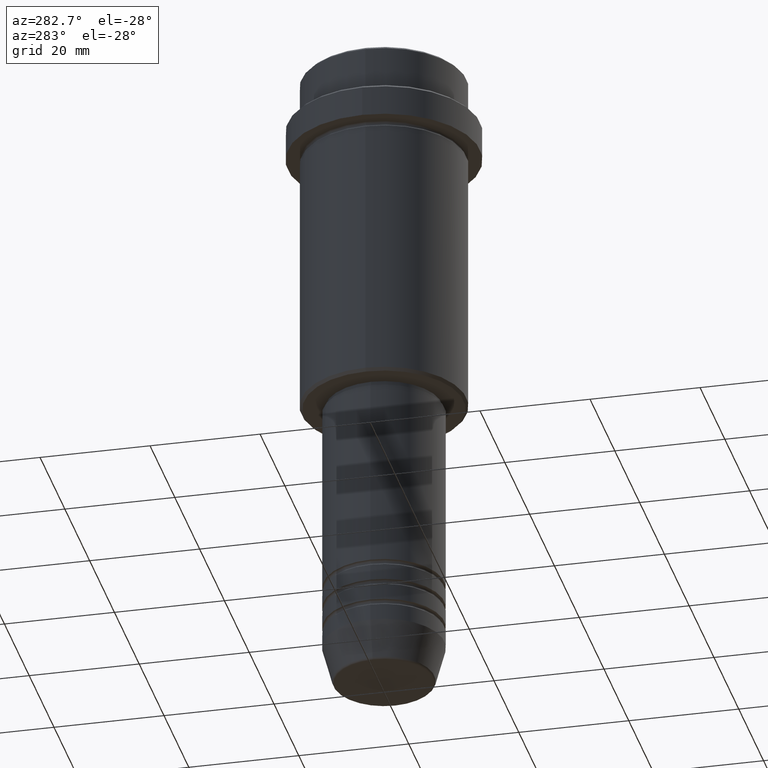
[diagram: clean part render]
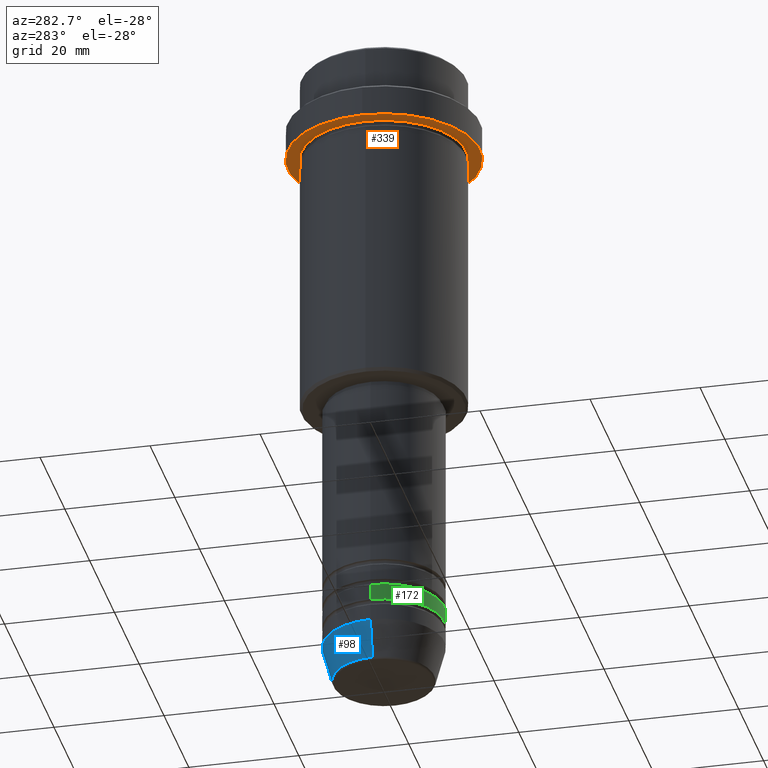
[diagram: same view with three faces highlighted in distinct colors, each labeled with its STEP entity id]
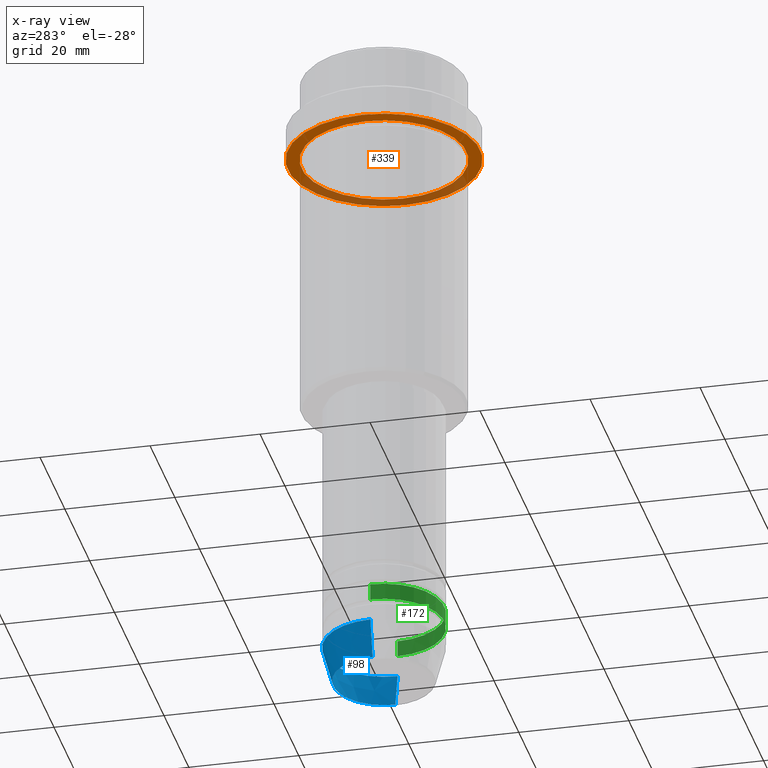
[diagram: x-ray of the same camera — body ghosted, the three highlighted faces saturated]
A machine part, auxiliary view with three faces highlighted in distinct colors.
The next image is the same camera in x-ray (body ghosted, the three faces saturated) — at least one of them is partly hidden behind the body in this view.
Their STEP definitions:

[orange] entity #339 — the highlighted planar face has unit normal (0, 0, -1).
#3 = VERTEX_POINT ( 'NONE', #737 ) ;
#73 = EDGE_LOOP ( 'NONE', ( #685, #800 ) ) ;
#75 = FACE_OUTER_BOUND ( 'NONE', #73, .T. ) ;
#96 = CARTESIAN_POINT ( 'NONE',  ( 0.000000000000000000, 0.000000000000000000, -15.00000000000000000 ) ) ;
#106 = CIRCLE ( 'NONE', #1408, 17.50000000000000000 ) ;
#141 = PLANE ( 'NONE',  #1291 ) ;
#143 = EDGE_LOOP ( 'NONE', ( #933, #679 ) ) ;
#200 = CARTESIAN_POINT ( 'NONE',  ( 0.000000000000000000, 0.000000000000000000, -15.00000000000000000 ) ) ;
#201 = CARTESIAN_POINT ( 'NONE',  ( 0.000000000000000000, 0.000000000000000000, -15.00000000000000000 ) ) ;
#339 = ADVANCED_FACE ( 'NONE', ( #515, #75 ), #141, .T. ) ;
#370 = DIRECTION ( 'NONE',  ( -0.000000000000000000, -0.000000000000000000, 1.000000000000000000 ) ) ;
#389 = CARTESIAN_POINT ( 'NONE',  ( -14.99999999999999467, 0.000000000000000000, -15.00000000000000000 ) ) ;
#404 = EDGE_CURVE ( 'NONE', #471, #736, #631, .T. ) ;
#442 = AXIS2_PLACEMENT_3D ( 'NONE', #200, #868, #1306 ) ;
#464 = AXIS2_PLACEMENT_3D ( 'NONE', #475, #370, #492 ) ;
#471 = VERTEX_POINT ( 'NONE', #847 ) ;
#475 = CARTESIAN_POINT ( 'NONE',  ( 0.000000000000000000, 0.000000000000000000, -15.00000000000000000 ) ) ;
#492 = DIRECTION ( 'NONE',  ( 1.000000000000000000, 0.000000000000000000, 0.000000000000000000 ) ) ;
#515 = FACE_BOUND ( 'NONE', #143, .T. ) ;
#565 = EDGE_CURVE ( 'NONE', #826, #3, #654, .T. ) ;
#575 = EDGE_CURVE ( 'NONE', #736, #471, #106, .T. ) ;
#590 = DIRECTION ( 'NONE',  ( 0.000000000000000000, 0.000000000000000000, -1.000000000000000000 ) ) ;
#631 = CIRCLE ( 'NONE', #464, 17.50000000000000000 ) ;
#654 = CIRCLE ( 'NONE', #442, 14.99999999999999467 ) ;
#655 = DIRECTION ( 'NONE',  ( 1.000000000000000000, 0.000000000000000000, 0.000000000000000000 ) ) ;
#667 = CARTESIAN_POINT ( 'NONE',  ( -17.50000000000000000, 2.143131898507868248E-15, -15.00000000000000000 ) ) ;
#668 = DIRECTION ( 'NONE',  ( -0.000000000000000000, -0.000000000000000000, 1.000000000000000000 ) ) ;
#679 = ORIENTED_EDGE ( 'NONE', *, *, #879, .T. ) ;
#685 = ORIENTED_EDGE ( 'NONE', *, *, #404, .F. ) ;
#736 = VERTEX_POINT ( 'NONE', #667 ) ;
#737 = CARTESIAN_POINT ( 'NONE',  ( 14.99999999999999467, 1.836970198721029194E-15, -15.00000000000000000 ) ) ;
#800 = ORIENTED_EDGE ( 'NONE', *, *, #575, .F. ) ;
#826 = VERTEX_POINT ( 'NONE', #389 ) ;
#847 = CARTESIAN_POINT ( 'NONE',  ( 17.50000000000000000, 0.000000000000000000, -15.00000000000000000 ) ) ;
#868 = DIRECTION ( 'NONE',  ( -0.000000000000000000, -0.000000000000000000, 1.000000000000000000 ) ) ;
#879 = EDGE_CURVE ( 'NONE', #3, #826, #1389, .T. ) ;
#916 = CARTESIAN_POINT ( 'NONE',  ( 0.000000000000000000, 17.50000000000000000, -15.00000000000000000 ) ) ;
#933 = ORIENTED_EDGE ( 'NONE', *, *, #565, .T. ) ;
#1030 = DIRECTION ( 'NONE',  ( -1.000000000000000000, 0.000000000000000000, -0.000000000000000000 ) ) ;
#1076 = AXIS2_PLACEMENT_3D ( 'NONE', #201, #668, #1091 ) ;
#1091 = DIRECTION ( 'NONE',  ( -1.000000000000000000, 0.000000000000000000, 0.000000000000000000 ) ) ;
#1194 = DIRECTION ( 'NONE',  ( -0.000000000000000000, -0.000000000000000000, 1.000000000000000000 ) ) ;
#1291 = AXIS2_PLACEMENT_3D ( 'NONE', #916, #590, #1030 ) ;
#1306 = DIRECTION ( 'NONE',  ( -1.000000000000000000, 0.000000000000000000, 0.000000000000000000 ) ) ;
#1389 = CIRCLE ( 'NONE', #1076, 14.99999999999999467 ) ;
#1408 = AXIS2_PLACEMENT_3D ( 'NONE', #96, #1194, #655 ) ;

[blue] entity #98 — the highlighted conical surface has half-angle 15 deg.
#50 = VERTEX_POINT ( 'NONE', #618 ) ;
#53 = DIRECTION ( 'NONE',  ( 1.000000000000000000, 0.000000000000000000, 0.000000000000000000 ) ) ;
#82 = ORIENTED_EDGE ( 'NONE', *, *, #269, .T. ) ;
#98 = ADVANCED_FACE ( 'NONE', ( #220 ), #1154, .T. ) ;
#148 = VECTOR ( 'NONE', #1144, 1000.000000000000000 ) ;
#220 = FACE_OUTER_BOUND ( 'NONE', #709, .T. ) ;
#235 = CIRCLE ( 'NONE', #1316, 11.00000000000000000 ) ;
#259 = ORIENTED_EDGE ( 'NONE', *, *, #435, .F. ) ;
#269 = EDGE_CURVE ( 'NONE', #1184, #1111, #512, .T. ) ;
#292 = CARTESIAN_POINT ( 'NONE',  ( 0.000000000000000000, 0.000000000000000000, -113.0000000000000000 ) ) ;
#308 = LINE ( 'NONE', #507, #495 ) ;
#402 = EDGE_CURVE ( 'NONE', #1111, #873, #608, .T. ) ;
#435 = EDGE_CURVE ( 'NONE', #1184, #50, #308, .T. ) ;
#439 = DIRECTION ( 'NONE',  ( -0.000000000000000000, -0.000000000000000000, 1.000000000000000000 ) ) ;
#452 = CARTESIAN_POINT ( 'NONE',  ( -11.00000000000000000, 1.347111479062088405E-15, -113.0000000000000000 ) ) ;
#455 = DIRECTION ( 'NONE',  ( -0.000000000000000000, -0.000000000000000000, 1.000000000000000000 ) ) ;
#495 = VECTOR ( 'NONE', #1210, 1000.000000000000000 ) ;
#507 = CARTESIAN_POINT ( 'NONE',  ( 11.00000000000000000, 0.000000000000000000, -113.0000000000000000 ) ) ;
#512 = CIRCLE ( 'NONE', #1313, 9.223655072137194821 ) ;
#534 = AXIS2_PLACEMENT_3D ( 'NONE', #292, #592, #53 ) ;
#571 = CARTESIAN_POINT ( 'NONE',  ( -9.223655072137194821, 1.238341722557647399E-15, -119.6294095225512422 ) ) ;
#592 = DIRECTION ( 'NONE',  ( -0.000000000000000000, -0.000000000000000000, 1.000000000000000000 ) ) ;
#608 = LINE ( 'NONE', #1043, #148 ) ;
#618 = CARTESIAN_POINT ( 'NONE',  ( 11.00000000000000000, 0.000000000000000000, -113.0000000000000000 ) ) ;
#646 = EDGE_CURVE ( 'NONE', #50, #873, #235, .T. ) ;
#673 = CARTESIAN_POINT ( 'NONE',  ( 0.000000000000000000, 0.000000000000000000, -113.0000000000000000 ) ) ;
#709 = EDGE_LOOP ( 'NONE', ( #82, #1120, #1329, #259 ) ) ;
#753 = DIRECTION ( 'NONE',  ( 1.000000000000000000, 0.000000000000000000, 0.000000000000000000 ) ) ;
#837 = CARTESIAN_POINT ( 'NONE',  ( 9.223655072137194821, 0.000000000000000000, -119.6294095225512422 ) ) ;
#873 = VERTEX_POINT ( 'NONE', #452 ) ;
#895 = CARTESIAN_POINT ( 'NONE',  ( 0.000000000000000000, 0.000000000000000000, -119.6294095225512422 ) ) ;
#1043 = CARTESIAN_POINT ( 'NONE',  ( -11.00000000000000000, 1.347111479062088405E-15, -113.0000000000000000 ) ) ;
#1111 = VERTEX_POINT ( 'NONE', #571 ) ;
#1116 = DIRECTION ( 'NONE',  ( 1.000000000000000000, 0.000000000000000000, 0.000000000000000000 ) ) ;
#1120 = ORIENTED_EDGE ( 'NONE', *, *, #402, .T. ) ;
#1144 = DIRECTION ( 'NONE',  ( -0.2588190451025213501, 3.169619151431772337E-17, 0.9659258262890680902 ) ) ;
#1154 = CONICAL_SURFACE ( 'NONE', #534, 11.00000000000000000, 0.2617993877991500740 ) ;
#1184 = VERTEX_POINT ( 'NONE', #837 ) ;
#1210 = DIRECTION ( 'NONE',  ( 0.2588190451025213501, 0.000000000000000000, 0.9659258262890680902 ) ) ;
#1313 = AXIS2_PLACEMENT_3D ( 'NONE', #895, #455, #753 ) ;
#1316 = AXIS2_PLACEMENT_3D ( 'NONE', #673, #439, #1116 ) ;
#1329 = ORIENTED_EDGE ( 'NONE', *, *, #646, .F. ) ;

[green] entity #172 — the highlighted cylindrical surface (partial cylindrical patch) has radius 11 mm, axis along (-0, -0, 1).
#34 = FACE_OUTER_BOUND ( 'NONE', #555, .T. ) ;
#58 = DIRECTION ( 'NONE',  ( 1.000000000000000000, 0.000000000000000000, 0.000000000000000000 ) ) ;
#100 = ORIENTED_EDGE ( 'NONE', *, *, #1333, .F. ) ;
#101 = LINE ( 'NONE', #974, #1224 ) ;
#169 = DIRECTION ( 'NONE',  ( -0.000000000000000000, -0.000000000000000000, 1.000000000000000000 ) ) ;
#172 = ADVANCED_FACE ( 'NONE', ( #34 ), #461, .T. ) ;
#178 = CIRCLE ( 'NONE', #657, 11.00000000000000000 ) ;
#241 = DIRECTION ( 'NONE',  ( 1.000000000000000000, 0.000000000000000000, 0.000000000000000000 ) ) ;
#271 = LINE ( 'NONE', #286, #1198 ) ;
#274 = EDGE_CURVE ( 'NONE', #754, #1057, #101, .T. ) ;
#286 = CARTESIAN_POINT ( 'NONE',  ( 11.00000000000000000, 0.000000000000000000, 0.000000000000000000 ) ) ;
#313 = DIRECTION ( 'NONE',  ( 1.000000000000000000, 0.000000000000000000, 0.000000000000000000 ) ) ;
#342 = CARTESIAN_POINT ( 'NONE',  ( 11.00000000000000000, 0.000000000000000000, -108.9999999999999005 ) ) ;
#377 = CIRCLE ( 'NONE', #1181, 11.00000000000000000 ) ;
#406 = VERTEX_POINT ( 'NONE', #920 ) ;
#422 = DIRECTION ( 'NONE',  ( -0.000000000000000000, -0.000000000000000000, 1.000000000000000000 ) ) ;
#461 = CYLINDRICAL_SURFACE ( 'NONE', #1177, 11.00000000000000000 ) ;
#555 = EDGE_LOOP ( 'NONE', ( #1281, #1264, #989, #100 ) ) ;
#598 = CARTESIAN_POINT ( 'NONE',  ( 0.000000000000000000, 0.000000000000000000, -108.9999999999999005 ) ) ;
#657 = AXIS2_PLACEMENT_3D ( 'NONE', #721, #1159, #313 ) ;
#681 = CARTESIAN_POINT ( 'NONE',  ( -11.00000000000000000, 1.347111479062088405E-15, -108.9999999999999005 ) ) ;
#721 = CARTESIAN_POINT ( 'NONE',  ( 0.000000000000000000, 0.000000000000000000, -105.9999999999999005 ) ) ;
#754 = VERTEX_POINT ( 'NONE', #681 ) ;
#786 = EDGE_CURVE ( 'NONE', #897, #406, #271, .T. ) ;
#897 = VERTEX_POINT ( 'NONE', #342 ) ;
#918 = CARTESIAN_POINT ( 'NONE',  ( 0.000000000000000000, 0.000000000000000000, 0.000000000000000000 ) ) ;
#920 = CARTESIAN_POINT ( 'NONE',  ( 11.00000000000000000, 0.000000000000000000, -105.9999999999999005 ) ) ;
#974 = CARTESIAN_POINT ( 'NONE',  ( -11.00000000000000000, 1.347111479062088405E-15, 0.000000000000000000 ) ) ;
#989 = ORIENTED_EDGE ( 'NONE', *, *, #786, .T. ) ;
#1038 = DIRECTION ( 'NONE',  ( -0.000000000000000000, -0.000000000000000000, 1.000000000000000000 ) ) ;
#1057 = VERTEX_POINT ( 'NONE', #1197 ) ;
#1118 = EDGE_CURVE ( 'NONE', #754, #897, #377, .T. ) ;
#1159 = DIRECTION ( 'NONE',  ( -0.000000000000000000, -0.000000000000000000, 1.000000000000000000 ) ) ;
#1177 = AXIS2_PLACEMENT_3D ( 'NONE', #918, #1235, #241 ) ;
#1181 = AXIS2_PLACEMENT_3D ( 'NONE', #598, #1038, #58 ) ;
#1197 = CARTESIAN_POINT ( 'NONE',  ( -11.00000000000000000, 1.347111479062088405E-15, -105.9999999999999005 ) ) ;
#1198 = VECTOR ( 'NONE', #169, 1000.000000000000000 ) ;
#1224 = VECTOR ( 'NONE', #422, 1000.000000000000000 ) ;
#1235 = DIRECTION ( 'NONE',  ( -0.000000000000000000, -0.000000000000000000, 1.000000000000000000 ) ) ;
#1264 = ORIENTED_EDGE ( 'NONE', *, *, #1118, .T. ) ;
#1281 = ORIENTED_EDGE ( 'NONE', *, *, #274, .F. ) ;
#1333 = EDGE_CURVE ( 'NONE', #1057, #406, #178, .T. ) ;